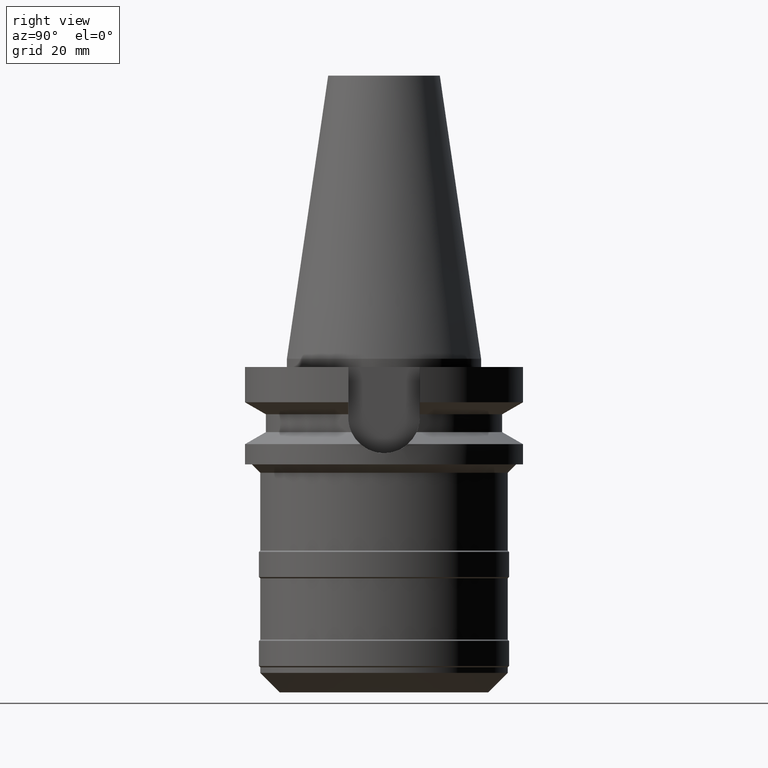
[diagram: clean part render]
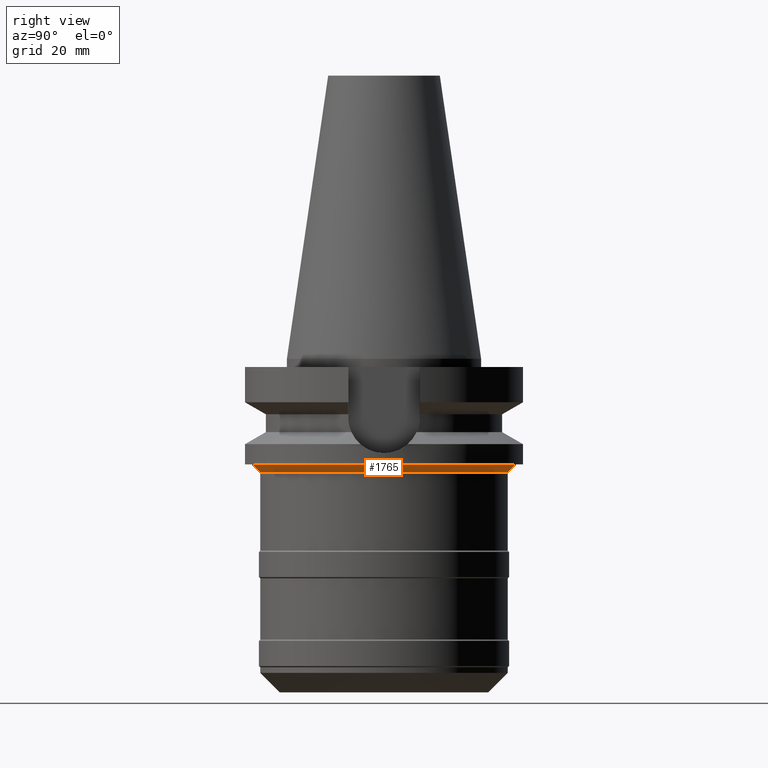
[diagram: same view with one face highlighted and labeled with its STEP entity id]
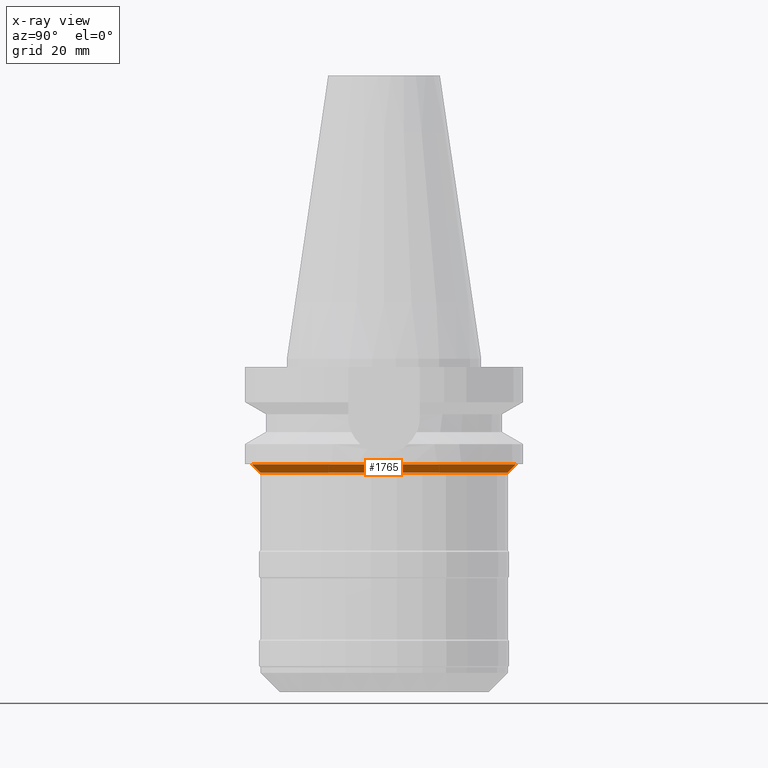
[diagram: x-ray of the same camera — body ghosted, the highlighted face saturated]
A machine part, right view. The second image highlights one B-rep face of the part: STEP entity #1765.
The next image is the same camera in x-ray: the body ghosted, the highlighted face saturated — about 0% of this face is hidden behind the body in this view.
In plain terms, the highlighted conical surface has half-angle 45 deg.
Its self-contained STEP definition (entity closure, byte-faithful):
#470=DIRECTION('',(0.E0,-7.071067811865E-1,-7.071067811866E-1));
#471=VECTOR('',#470,4.242640687119E0);
#472=CARTESIAN_POINT('',(0.E0,4.75E1,-3.8E1));
#473=LINE('',#472,#471);
#477=CARTESIAN_POINT('',(0.E0,0.E0,-4.1E1));
#478=DIRECTION('',(0.E0,0.E0,-1.E0));
#479=DIRECTION('',(0.E0,1.E0,0.E0));
#480=AXIS2_PLACEMENT_3D('',#477,#478,#479);
#485=DIRECTION('',(0.E0,7.071067811865E-1,-7.071067811865E-1));
#486=VECTOR('',#485,4.242640687119E0);
#487=CARTESIAN_POINT('',(0.E0,-4.75E1,-3.8E1));
#488=LINE('',#487,#486);
#524=CARTESIAN_POINT('',(0.E0,0.E0,-3.8E1));
#525=DIRECTION('',(0.E0,0.E0,-1.E0));
#526=DIRECTION('',(0.E0,1.E0,0.E0));
#527=AXIS2_PLACEMENT_3D('',#524,#525,#526);
#1208=CARTESIAN_POINT('',(0.E0,4.45E1,-4.1E1));
#1209=VERTEX_POINT('',#1208);
#1210=CARTESIAN_POINT('',(0.E0,-4.45E1,-4.1E1));
#1211=VERTEX_POINT('',#1210);
#1212=CARTESIAN_POINT('',(0.E0,4.75E1,-3.8E1));
#1213=VERTEX_POINT('',#1212);
#1214=CARTESIAN_POINT('',(0.E0,-4.75E1,-3.8E1));
#1215=VERTEX_POINT('',#1214);
#1751=CARTESIAN_POINT('',(0.E0,0.E0,-3.95E1));
#1752=DIRECTION('',(0.E0,0.E0,1.E0));
#1753=DIRECTION('',(0.E0,1.E0,0.E0));
#1754=AXIS2_PLACEMENT_3D('',#1751,#1752,#1753);
#1755=CONICAL_SURFACE('',#1754,4.6E1,4.5E1);
#1757=ORIENTED_EDGE('',*,*,#1756,.T.);
#1758=ORIENTED_EDGE('',*,*,#1746,.T.);
#1760=ORIENTED_EDGE('',*,*,#1759,.F.);
#1762=ORIENTED_EDGE('',*,*,#1761,.F.);
#1763=EDGE_LOOP('',(#1757,#1758,#1760,#1762));
#1764=FACE_OUTER_BOUND('',#1763,.F.);
#481=CIRCLE('',#480,4.45E1);
#528=CIRCLE('',#527,4.75E1);
#1746=EDGE_CURVE('',#1209,#1211,#481,.T.);
#1756=EDGE_CURVE('',#1213,#1209,#473,.T.);
#1759=EDGE_CURVE('',#1215,#1211,#488,.T.);
#1761=EDGE_CURVE('',#1213,#1215,#528,.T.);
#1765=ADVANCED_FACE('',(#1764),#1755,.T.);